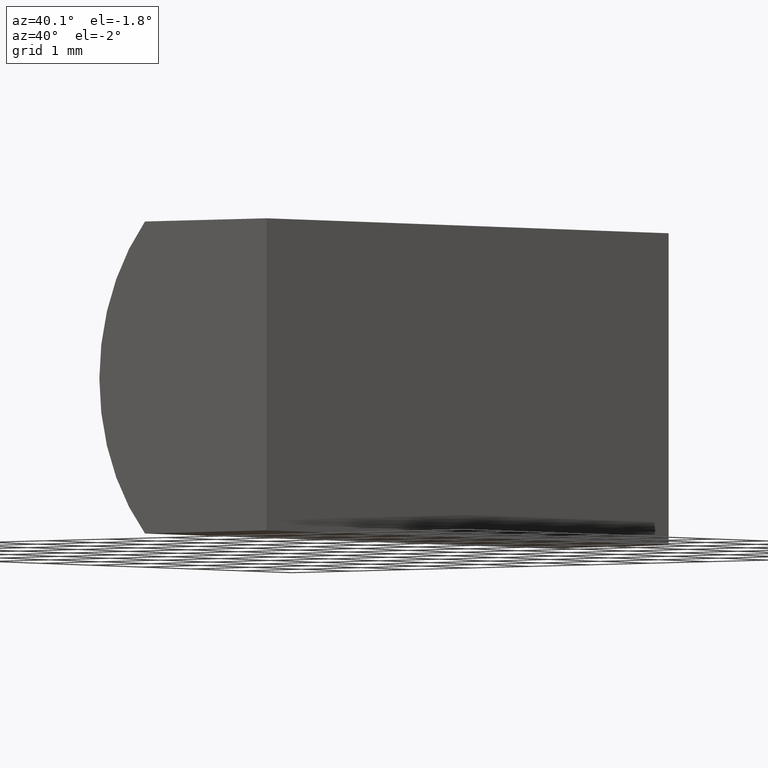
[diagram: clean part render]
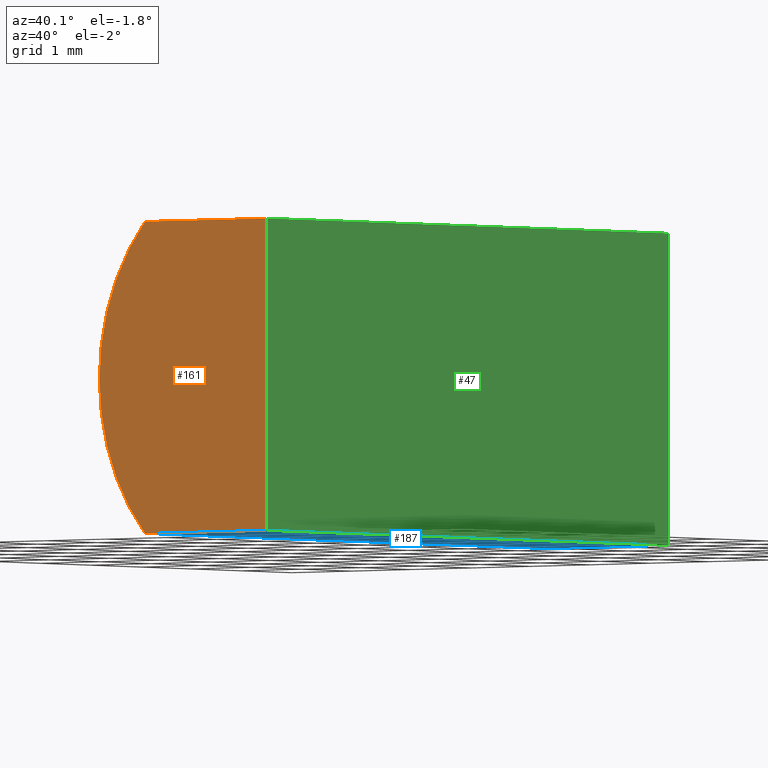
[diagram: same view with three faces highlighted in distinct colors, each labeled with its STEP entity id]
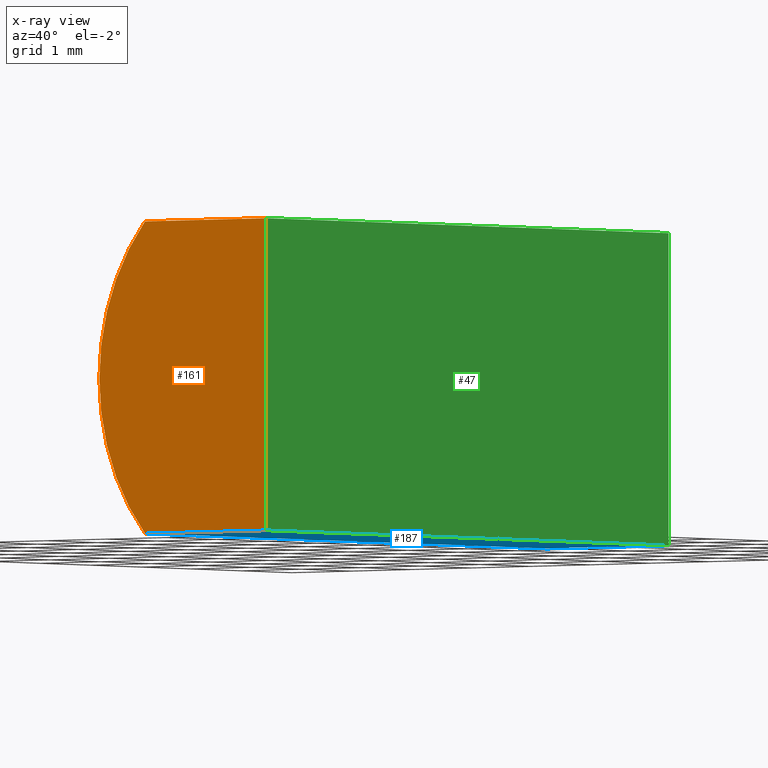
[diagram: x-ray of the same camera — body ghosted, the three highlighted faces saturated]
A machine part, auxiliary view with three faces highlighted in distinct colors.
The next image is the same camera in x-ray (body ghosted, the three faces saturated) — at least one of them is partly hidden behind the body in this view.
Their STEP definitions:

[orange] entity #161 — the highlighted planar face has unit normal (0, 1, 0).
#1 = PLANE ( 'NONE',  #70 ) ;
#6 = DIRECTION ( 'NONE',  ( 0.0000000000000000000, 1.000000000000000000, 0.0000000000000000000 ) ) ;
#7 = CARTESIAN_POINT ( 'NONE',  ( 0.0000000000000000000, 0.0000000000000000000, 4.000000000000000000 ) ) ;
#9 = DIRECTION ( 'NONE',  ( 0.0000000000000000000, -0.0000000000000000000, 1.000000000000000000 ) ) ;
#10 = ORIENTED_EDGE ( 'NONE', *, *, #201, .F. ) ;
#14 = VECTOR ( 'NONE', #162, 1000.000000000000000 ) ;
#16 = EDGE_CURVE ( 'NONE', #37, #117, #151, .T. ) ;
#19 = CARTESIAN_POINT ( 'NONE',  ( 0.0000000000000000000, 0.0000000000000000000, 0.0000000000000000000 ) ) ;
#27 = ORIENTED_EDGE ( 'NONE', *, *, #71, .F. ) ;
#32 = VERTEX_POINT ( 'NONE', #148 ) ;
#33 = VERTEX_POINT ( 'NONE', #149 ) ;
#34 = CARTESIAN_POINT ( 'NONE',  ( 0.2000000000000005100, 0.0000000000000000000, 2.000000000000000000 ) ) ;
#37 = VERTEX_POINT ( 'NONE', #145 ) ;
#38 = VECTOR ( 'NONE', #102, 1000.000000000000000 ) ;
#70 = AXIS2_PLACEMENT_3D ( 'NONE', #115, #6, #9 ) ;
#71 = EDGE_CURVE ( 'NONE', #33, #37, #113, .T. ) ;
#73 = AXIS2_PLACEMENT_3D ( 'NONE', #34, #192, #134 ) ;
#91 = EDGE_LOOP ( 'NONE', ( #10, #190, #27, #99 ) ) ;
#99 = ORIENTED_EDGE ( 'NONE', *, *, #180, .F. ) ;
#101 = CARTESIAN_POINT ( 'NONE',  ( 0.0000000000000000000, 0.0000000000000000000, 0.0000000000000000000 ) ) ;
#102 = DIRECTION ( 'NONE',  ( -1.000000000000000000, 0.0000000000000000000, 0.0000000000000000000 ) ) ;
#108 = FACE_OUTER_BOUND ( 'NONE', #91, .T. ) ;
#113 = LINE ( 'NONE', #7, #14 ) ;
#115 = CARTESIAN_POINT ( 'NONE',  ( 0.2000000000000005100, 0.0000000000000000000, 2.000000000000000000 ) ) ;
#117 = VERTEX_POINT ( 'NONE', #19 ) ;
#134 = DIRECTION ( 'NONE',  ( 0.0000000000000000000, 0.0000000000000000000, 1.000000000000000000 ) ) ;
#138 = DIRECTION ( 'NONE',  ( -0.0000000000000000000, -0.0000000000000000000, -1.000000000000000000 ) ) ;
#142 = CIRCLE ( 'NONE', #73, 2.999999999999999100 ) ;
#145 = CARTESIAN_POINT ( 'NONE',  ( 0.0000000000000000000, 0.0000000000000000000, 4.000000000000000000 ) ) ;
#147 = CARTESIAN_POINT ( 'NONE',  ( 0.0000000000000000000, 0.0000000000000000000, 0.0000000000000000000 ) ) ;
#148 = CARTESIAN_POINT ( 'NONE',  ( -2.036067977499787900, 0.0000000000000000000, -4.336808689942017700E-016 ) ) ;
#149 = CARTESIAN_POINT ( 'NONE',  ( -2.036067977499788700, 0.0000000000000000000, 4.000000000000000000 ) ) ;
#151 = LINE ( 'NONE', #147, #169 ) ;
#161 = ADVANCED_FACE ( 'NONE', ( #108 ), #1, .F. ) ;
#162 = DIRECTION ( 'NONE',  ( 1.000000000000000000, -0.0000000000000000000, -0.0000000000000000000 ) ) ;
#169 = VECTOR ( 'NONE', #138, 1000.000000000000000 ) ;
#180 = EDGE_CURVE ( 'NONE', #32, #33, #142, .T. ) ;
#190 = ORIENTED_EDGE ( 'NONE', *, *, #16, .F. ) ;
#192 = DIRECTION ( 'NONE',  ( 0.0000000000000000000, 1.000000000000000000, 0.0000000000000000000 ) ) ;
#201 = EDGE_CURVE ( 'NONE', #117, #32, #203, .T. ) ;
#203 = LINE ( 'NONE', #101, #38 ) ;

[blue] entity #187 — the highlighted planar face has unit normal (0, -0, 1).
#19 = CARTESIAN_POINT ( 'NONE',  ( 0.0000000000000000000, 0.0000000000000000000, 0.0000000000000000000 ) ) ;
#23 = CARTESIAN_POINT ( 'NONE',  ( -2.036067977499787900, 8.000000000000000000, -4.336808689942017700E-016 ) ) ;
#30 = EDGE_CURVE ( 'NONE', #132, #32, #179, .T. ) ;
#32 = VERTEX_POINT ( 'NONE', #148 ) ;
#38 = VECTOR ( 'NONE', #102, 1000.000000000000000 ) ;
#43 = CARTESIAN_POINT ( 'NONE',  ( 0.0000000000000000000, 8.000000000000000000, 0.0000000000000000000 ) ) ;
#51 = CARTESIAN_POINT ( 'NONE',  ( 0.0000000000000000000, 8.000000000000000000, 0.0000000000000000000 ) ) ;
#52 = FACE_OUTER_BOUND ( 'NONE', #178, .T. ) ;
#57 = ORIENTED_EDGE ( 'NONE', *, *, #75, .F. ) ;
#60 = ORIENTED_EDGE ( 'NONE', *, *, #30, .F. ) ;
#66 = LINE ( 'NONE', #51, #90 ) ;
#67 = EDGE_CURVE ( 'NONE', #87, #117, #105, .T. ) ;
#75 = EDGE_CURVE ( 'NONE', #87, #132, #66, .T. ) ;
#76 = CARTESIAN_POINT ( 'NONE',  ( 0.0000000000000000000, 8.000000000000000000, 0.0000000000000000000 ) ) ;
#84 = DIRECTION ( 'NONE',  ( -1.000000000000000000, 0.0000000000000000000, 0.0000000000000000000 ) ) ;
#87 = VERTEX_POINT ( 'NONE', #198 ) ;
#90 = VECTOR ( 'NONE', #84, 1000.000000000000000 ) ;
#92 = ORIENTED_EDGE ( 'NONE', *, *, #201, .T. ) ;
#101 = CARTESIAN_POINT ( 'NONE',  ( 0.0000000000000000000, 0.0000000000000000000, 0.0000000000000000000 ) ) ;
#102 = DIRECTION ( 'NONE',  ( -1.000000000000000000, 0.0000000000000000000, 0.0000000000000000000 ) ) ;
#103 = CARTESIAN_POINT ( 'NONE',  ( -2.036067977499787900, 8.000000000000000000, -4.336808689942017700E-016 ) ) ;
#105 = LINE ( 'NONE', #43, #191 ) ;
#111 = DIRECTION ( 'NONE',  ( 0.0000000000000000000, -0.0000000000000000000, 1.000000000000000000 ) ) ;
#112 = PLANE ( 'NONE',  #154 ) ;
#117 = VERTEX_POINT ( 'NONE', #19 ) ;
#121 = ORIENTED_EDGE ( 'NONE', *, *, #67, .T. ) ;
#131 = DIRECTION ( 'NONE',  ( -0.0000000000000000000, -1.000000000000000000, -0.0000000000000000000 ) ) ;
#132 = VERTEX_POINT ( 'NONE', #23 ) ;
#148 = CARTESIAN_POINT ( 'NONE',  ( -2.036067977499787900, 0.0000000000000000000, -4.336808689942017700E-016 ) ) ;
#154 = AXIS2_PLACEMENT_3D ( 'NONE', #76, #111, #164 ) ;
#164 = DIRECTION ( 'NONE',  ( 1.000000000000000000, 0.0000000000000000000, -0.0000000000000000000 ) ) ;
#167 = DIRECTION ( 'NONE',  ( -0.0000000000000000000, -1.000000000000000000, -0.0000000000000000000 ) ) ;
#178 = EDGE_LOOP ( 'NONE', ( #92, #60, #57, #121 ) ) ;
#179 = LINE ( 'NONE', #103, #194 ) ;
#187 = ADVANCED_FACE ( 'NONE', ( #52 ), #112, .F. ) ;
#191 = VECTOR ( 'NONE', #131, 1000.000000000000000 ) ;
#194 = VECTOR ( 'NONE', #167, 1000.000000000000000 ) ;
#198 = CARTESIAN_POINT ( 'NONE',  ( 0.0000000000000000000, 8.000000000000000000, 0.0000000000000000000 ) ) ;
#201 = EDGE_CURVE ( 'NONE', #117, #32, #203, .T. ) ;
#203 = LINE ( 'NONE', #101, #38 ) ;

[green] entity #47 — the highlighted planar face has unit normal (-1, 0, 0).
#16 = EDGE_CURVE ( 'NONE', #37, #117, #151, .T. ) ;
#19 = CARTESIAN_POINT ( 'NONE',  ( 0.0000000000000000000, 0.0000000000000000000, 0.0000000000000000000 ) ) ;
#20 = VECTOR ( 'NONE', #89, 1000.000000000000000 ) ;
#29 = CARTESIAN_POINT ( 'NONE',  ( 0.0000000000000000000, 8.000000000000000000, 0.0000000000000000000 ) ) ;
#37 = VERTEX_POINT ( 'NONE', #145 ) ;
#40 = LINE ( 'NONE', #44, #72 ) ;
#43 = CARTESIAN_POINT ( 'NONE',  ( 0.0000000000000000000, 8.000000000000000000, 0.0000000000000000000 ) ) ;
#44 = CARTESIAN_POINT ( 'NONE',  ( 0.0000000000000000000, 8.000000000000000000, 4.000000000000000000 ) ) ;
#46 = FACE_OUTER_BOUND ( 'NONE', #174, .T. ) ;
#47 = ADVANCED_FACE ( 'NONE', ( #46 ), #135, .F. ) ;
#62 = EDGE_CURVE ( 'NONE', #158, #87, #107, .T. ) ;
#67 = EDGE_CURVE ( 'NONE', #87, #117, #105, .T. ) ;
#72 = VECTOR ( 'NONE', #120, 1000.000000000000000 ) ;
#74 = CARTESIAN_POINT ( 'NONE',  ( 0.0000000000000000000, 8.000000000000000000, 0.0000000000000000000 ) ) ;
#80 = EDGE_CURVE ( 'NONE', #158, #37, #40, .T. ) ;
#87 = VERTEX_POINT ( 'NONE', #198 ) ;
#89 = DIRECTION ( 'NONE',  ( -0.0000000000000000000, -0.0000000000000000000, -1.000000000000000000 ) ) ;
#105 = LINE ( 'NONE', #43, #191 ) ;
#107 = LINE ( 'NONE', #74, #20 ) ;
#116 = DIRECTION ( 'NONE',  ( -1.000000000000000000, 0.0000000000000000000, 0.0000000000000000000 ) ) ;
#117 = VERTEX_POINT ( 'NONE', #19 ) ;
#120 = DIRECTION ( 'NONE',  ( -0.0000000000000000000, -1.000000000000000000, -0.0000000000000000000 ) ) ;
#122 = ORIENTED_EDGE ( 'NONE', *, *, #67, .F. ) ;
#127 = ORIENTED_EDGE ( 'NONE', *, *, #16, .T. ) ;
#128 = ORIENTED_EDGE ( 'NONE', *, *, #62, .F. ) ;
#131 = DIRECTION ( 'NONE',  ( -0.0000000000000000000, -1.000000000000000000, -0.0000000000000000000 ) ) ;
#135 = PLANE ( 'NONE',  #176 ) ;
#138 = DIRECTION ( 'NONE',  ( -0.0000000000000000000, -0.0000000000000000000, -1.000000000000000000 ) ) ;
#145 = CARTESIAN_POINT ( 'NONE',  ( 0.0000000000000000000, 0.0000000000000000000, 4.000000000000000000 ) ) ;
#147 = CARTESIAN_POINT ( 'NONE',  ( 0.0000000000000000000, 0.0000000000000000000, 0.0000000000000000000 ) ) ;
#151 = LINE ( 'NONE', #147, #169 ) ;
#158 = VERTEX_POINT ( 'NONE', #173 ) ;
#169 = VECTOR ( 'NONE', #138, 1000.000000000000000 ) ;
#173 = CARTESIAN_POINT ( 'NONE',  ( 0.0000000000000000000, 8.000000000000000000, 4.000000000000000000 ) ) ;
#174 = EDGE_LOOP ( 'NONE', ( #127, #122, #128, #204 ) ) ;
#176 = AXIS2_PLACEMENT_3D ( 'NONE', #29, #116, #189 ) ;
#189 = DIRECTION ( 'NONE',  ( 0.0000000000000000000, 0.0000000000000000000, 1.000000000000000000 ) ) ;
#191 = VECTOR ( 'NONE', #131, 1000.000000000000000 ) ;
#198 = CARTESIAN_POINT ( 'NONE',  ( 0.0000000000000000000, 8.000000000000000000, 0.0000000000000000000 ) ) ;
#204 = ORIENTED_EDGE ( 'NONE', *, *, #80, .T. ) ;